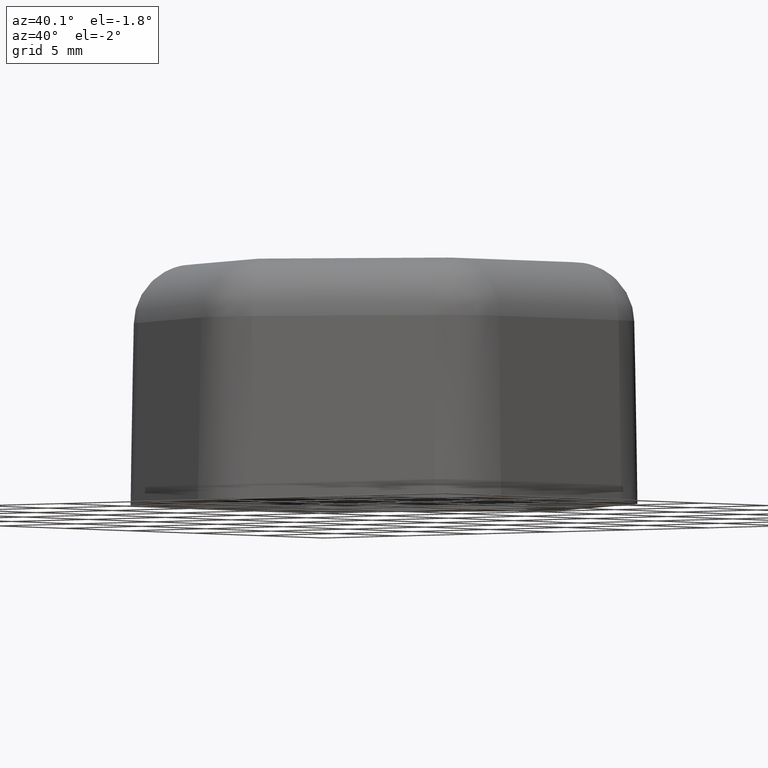
[diagram: clean part render]
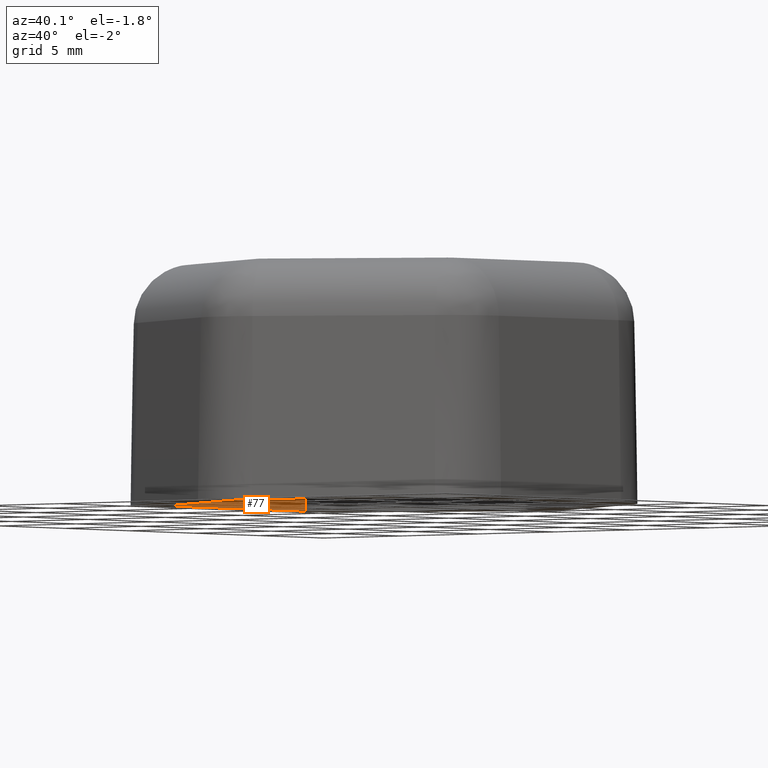
[diagram: same view with one face highlighted and labeled with its STEP entity id]
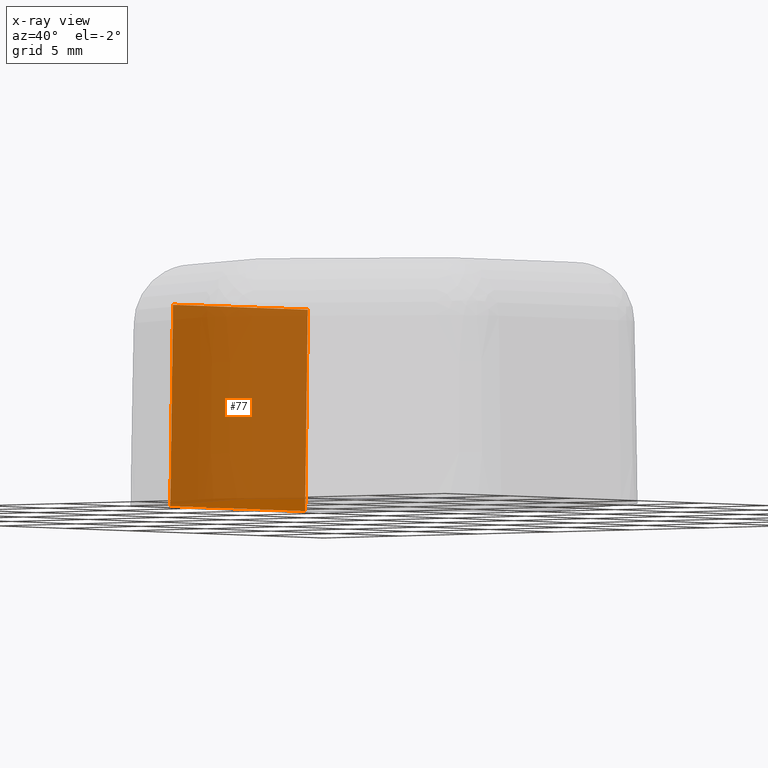
[diagram: x-ray of the same camera — body ghosted, the highlighted face saturated]
A machine part, auxiliary view. The second image highlights one B-rep face of the part: STEP entity #77.
The next image is the same camera in x-ray: the body ghosted, the highlighted face saturated — about 96% of this face is hidden behind the body in this view.
In plain terms, the highlighted planar face has unit normal (-0.9998, -0, 0.0175).
Its self-contained STEP definition (entity closure, byte-faithful):
#77 = ADVANCED_FACE( '', ( #119 ), #120, .F. );
#119 = FACE_OUTER_BOUND( '', #198, .T. );
#120 = PLANE( '', #199 );
#198 = EDGE_LOOP( '', ( #419, #420, #421, #422 ) );
#199 = AXIS2_PLACEMENT_3D( '', #423, #424, #425 );
#419 = ORIENTED_EDGE( '', *, *, #704, .T. );
#420 = ORIENTED_EDGE( '', *, *, #703, .F. );
#421 = ORIENTED_EDGE( '', *, *, #705, .F. );
#422 = ORIENTED_EDGE( '', *, *, #706, .T. );
#423 = CARTESIAN_POINT( '', ( -9.50000000000000, 5.62916512459885, -1.16337603613126E-015 ) );
#424 = DIRECTION( '', ( -0.999847695156391, -3.88518876298357E-016, 0.0174524064372834 ) );
#425 = DIRECTION( '', ( 0.0174524064372834, 0.000000000000000, 0.999847695156391 ) );
#703 = EDGE_CURVE( '', #805, #800, #807, .T. );
#704 = EDGE_CURVE( '', #808, #800, #809, .T. );
#705 = EDGE_CURVE( '', #810, #805, #811, .T. );
#706 = EDGE_CURVE( '', #810, #808, #812, .T. );
#800 = VERTEX_POINT( '', #958 );
#805 = VERTEX_POINT( '', #964 );
#807 = LINE( '', #966, #967 );
#808 = VERTEX_POINT( '', #968 );
#809 = LINE( '', #969, #970 );
#810 = VERTEX_POINT( '', #971 );
#811 = LINE( '', #972, #973 );
#812 = LINE( '', #974, #975 );
#958 = CARTESIAN_POINT( '', ( -9.50000000000000, 5.19615242270664, -1.16337603613126E-015 ) );
#964 = CARTESIAN_POINT( '', ( -9.32544935071783, 5.19615242270664, 10.0000000000000 ) );
#966 = CARTESIAN_POINT( '', ( -9.50000000000000, 5.19615242270664, -1.16924730445965E-015 ) );
#967 = VECTOR( '', #1173, 1000.00000000000 );
#968 = CARTESIAN_POINT( '', ( -9.50000000000000, -5.19615242270663, -1.16337603613126E-015 ) );
#969 = CARTESIAN_POINT( '', ( -9.50000000000000, 5.19615242270663, -1.16337603613126E-015 ) );
#970 = VECTOR( '', #1174, 1000.00000000000 );
#971 = CARTESIAN_POINT( '', ( -9.32544935071783, -5.19615242270664, 10.0000000000000 ) );
#972 = CARTESIAN_POINT( '', ( -9.32544935071783, 5.19615242270663, 10.0000000000000 ) );
#973 = VECTOR( '', #1175, 1000.00000000000 );
#974 = CARTESIAN_POINT( '', ( -9.50000000000000, -5.19615242270663, -1.13688935903081E-015 ) );
#975 = VECTOR( '', #1176, 1000.00000000000 );
#1173 = DIRECTION( '', ( -0.0174524064372834, -6.78162221162596E-018, -0.999847695156391 ) );
#1174 = DIRECTION( '', ( -3.88578058618805E-016, 1.00000000000000, -4.84461170990531E-032 ) );
#1175 = DIRECTION( '', ( -3.88578058618805E-016, 1.00000000000000, -4.84461170990531E-032 ) );
#1176 = DIRECTION( '', ( -0.0174524064372834, 1.21100396636177E-016, -0.999847695156391 ) );